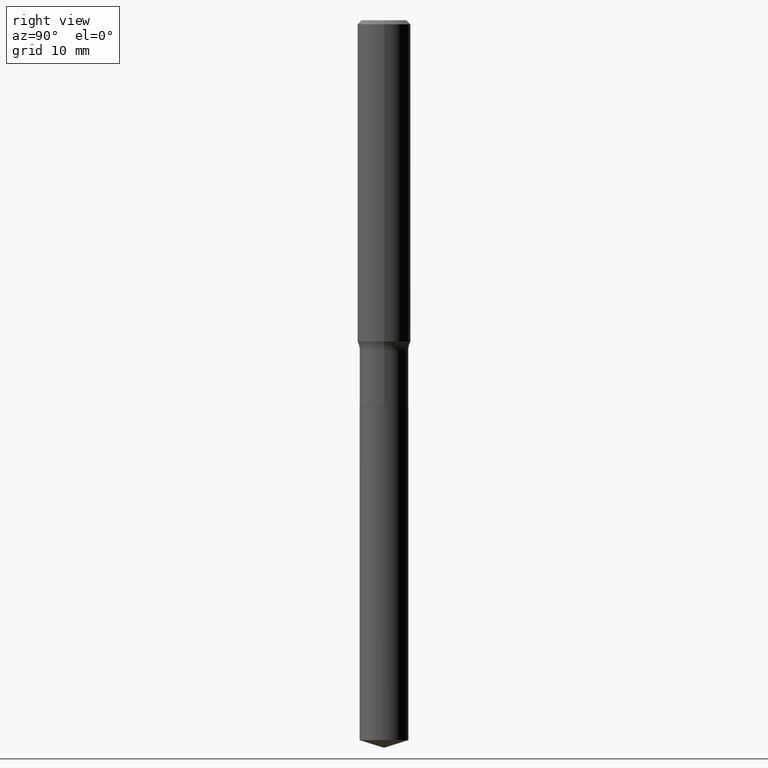
[diagram: clean part render]
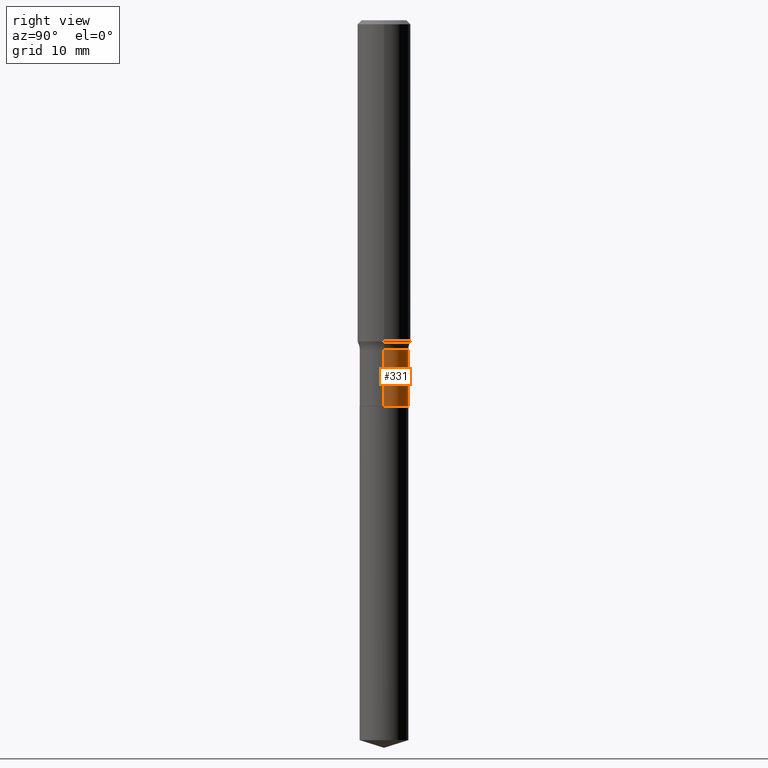
[diagram: same view with one face highlighted and labeled with its STEP entity id]
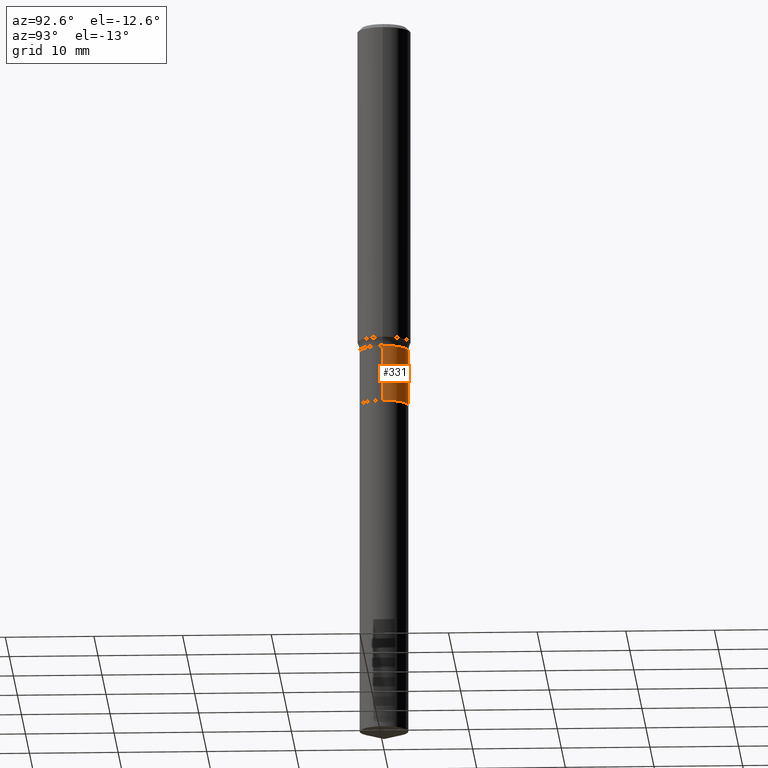
[diagram: same view with one face highlighted and labeled with its STEP entity id]
A machine part, right view. The second image highlights one B-rep face of the part: STEP entity #331.
A second angle (auxiliary view) of the same face is appended — the face is thin or edge-on in the first view.
In plain terms, the highlighted cylindrical surface (edge-blend (fillet) strip) has radius 2.7495 mm, axis along (-0, 0, 1).
Its self-contained STEP definition (entity closure, byte-faithful):
#28 = CARTESIAN_POINT ( 'NONE',  ( 0.1082499999999999712, -5.865688649256482338E-15, -1.463500000000000023 ) ) ;
#37 = CARTESIAN_POINT ( 'NONE',  ( 0.000000000000000000, 0.000000000000000000, 0.000000000000000000 ) ) ;
#58 = ORIENTED_EDGE ( 'NONE', *, *, #491, .F. ) ;
#87 = CYLINDRICAL_SURFACE ( 'NONE', #91, 0.1082499999999999851 ) ;
#91 = AXIS2_PLACEMENT_3D ( 'NONE', #37, #342, #233 ) ;
#117 = LINE ( 'NONE', #196, #372 ) ;
#135 = CARTESIAN_POINT ( 'NONE',  ( -0.1082499999999999712, -4.774436984287896921E-15, -1.463500000000000023 ) ) ;
#149 = ORIENTED_EDGE ( 'NONE', *, *, #369, .F. ) ;
#153 = DIRECTION ( 'NONE',  ( -2.445468806185136877E-29, 3.491481338843145188E-15, 1.000000000000000000 ) ) ;
#170 = DIRECTION ( 'NONE',  ( 1.000000000000000000, -6.982962677686269077E-15, 0.000000000000000000 ) ) ;
#196 = CARTESIAN_POINT ( 'NONE',  ( 0.1082499999999999851, -7.559057098595382610E-16, 5.278461359799099291E-30 ) ) ;
#205 = CARTESIAN_POINT ( 'NONE',  ( 3.578943597851947764E-29, -5.109782939396944472E-15, -1.463500000000000023 ) ) ;
#218 = CARTESIAN_POINT ( 'NONE',  ( 4.186642596188954069E-29, -5.977416052099465667E-15, -1.712000000000000188 ) ) ;
#233 = DIRECTION ( 'NONE',  ( 1.000000000000000000, -6.982962677686266711E-15, 4.876176775795935232E-29 ) ) ;
#235 = LINE ( 'NONE', #337, #321 ) ;
#246 = VERTEX_POINT ( 'NONE', #318 ) ;
#255 = EDGE_LOOP ( 'NONE', ( #323, #477, #58, #149 ) ) ;
#269 = EDGE_CURVE ( 'NONE', #417, #246, #301, .T. ) ;
#290 = VERTEX_POINT ( 'NONE', #135 ) ;
#292 = VERTEX_POINT ( 'NONE', #28 ) ;
#301 = CIRCLE ( 'NONE', #313, 0.1082499999999999990 ) ;
#304 = CARTESIAN_POINT ( 'NONE',  ( 0.1082499999999999990, -6.733321761959004322E-15, -1.712000000000000188 ) ) ;
#305 = DIRECTION ( 'NONE',  ( -2.445468806185136877E-29, 3.491481338843145188E-15, 1.000000000000000000 ) ) ;
#313 = AXIS2_PLACEMENT_3D ( 'NONE', #218, #443, #327 ) ;
#318 = CARTESIAN_POINT ( 'NONE',  ( -0.1082499999999999990, -4.774436984287896921E-15, -1.712000000000000188 ) ) ;
#321 = VECTOR ( 'NONE', #153, 39.37007874015748143 ) ;
#323 = ORIENTED_EDGE ( 'NONE', *, *, #269, .T. ) ;
#326 = CIRCLE ( 'NONE', #390, 0.1082499999999999712 ) ;
#327 = DIRECTION ( 'NONE',  ( 1.000000000000000000, -6.982962677686267499E-15, 0.000000000000000000 ) ) ;
#331 = ADVANCED_FACE ( 'NONE', ( #410 ), #87, .T. ) ;
#337 = CARTESIAN_POINT ( 'NONE',  ( -0.1082499999999999851, 7.691625114603083455E-16, -5.324747235200934608E-30 ) ) ;
#342 = DIRECTION ( 'NONE',  ( -2.445468806185136597E-29, 3.491481338843145583E-15, 1.000000000000000000 ) ) ;
#347 = EDGE_CURVE ( 'NONE', #246, #290, #235, .T. ) ;
#369 = EDGE_CURVE ( 'NONE', #417, #292, #117, .T. ) ;
#372 = VECTOR ( 'NONE', #305, 39.37007874015748143 ) ;
#390 = AXIS2_PLACEMENT_3D ( 'NONE', #205, #464, #170 ) ;
#410 = FACE_OUTER_BOUND ( 'NONE', #255, .T. ) ;
#417 = VERTEX_POINT ( 'NONE', #304 ) ;
#443 = DIRECTION ( 'NONE',  ( -2.445468806185136597E-29, 3.491481338843145583E-15, 1.000000000000000000 ) ) ;
#464 = DIRECTION ( 'NONE',  ( -2.445468806185136597E-29, 3.491481338843145583E-15, 1.000000000000000000 ) ) ;
#477 = ORIENTED_EDGE ( 'NONE', *, *, #347, .T. ) ;
#491 = EDGE_CURVE ( 'NONE', #292, #290, #326, .T. ) ;